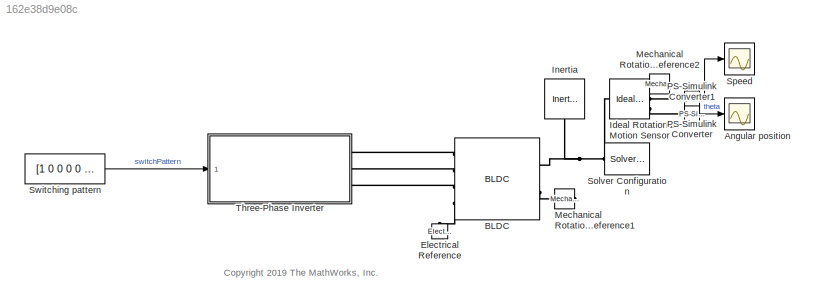
MODEL slx_162e38d9e08c
KIND model
CONFIG AbsTol = auto
CONFIG EnableMultiTasking = off
CONFIG FixedStep = 2e-6
CONFIG InitFcn = warning('off','physmod:simscape:engine:core:advancer_errors:fallback_solve')
CONFIG MaxStep = auto
CONFIG MinStep = auto
CONFIG RelTol = 1e-3
CONFIG SampleTimeConstraint = Unconstrained
CONFIG Solver = ode1
CONFIG SolverName = ode1
CONFIG StartTime = 0.0
CONFIG StopTime = 0.2
BLOCK [Scope] Angular position
  Floating = off
  NumInputPorts = 1
  Ports = [1]
  ScopeSpecificationString = Simulink.scopes.TimeScopeBlockCfg('CurrentConfiguration', extmgr.ConfigurationSet(extmgr.Configuration('Core','General UI',true),extmgr.Configuration('Core','Source UI',true),extmgr.Configuration('Sources','WiredSimulink',true,'DataLoggingVariableName','thetaSim','DataLoggingSaveFormat','StructureWithTime'),extmgr.Configuration('Visuals','Time Domain',true,'SerializedDisplays',{struct('MinYLimReal...<+1467ch>
BLOCK [Reference] BLDC  REF=ee_lib/Electromechanical/Permanent Magnet/BLDC
  Ports = [0, 0, 0, 0, 0, 4, 2]
  SourceBlock = ee_lib/Electromechanical/Permanent Magnet/BLDC
  SourceProductBaseCode = PS
  SourceProductName = Simscape Electrical
  SourceType = BLDC
BLOCK [Reference] Electrical Reference  REF=fl_lib/Electrical/Electrical Elements/Electrical Reference
  Ports = [0, 0, 0, 0, 0, 1]
  SourceBlock = fl_lib/Electrical/Electrical Elements/Electrical Reference
  SourceProductBaseCode = SS
  SourceProductName = Simscape
  SourceType = Electrical Reference
BLOCK [Reference] Ideal Rotational Motion Sensor  REF=fl_lib/Mechanical/Mechanical Sensors/Ideal Rotational
Motion Sensor
  Ports = [0, 0, 0, 0, 0, 1, 3]
  SourceBlock = fl_lib/Mechanical/Mechanical Sensors/Ideal Rotational\nMotion Sensor
  SourceProductBaseCode = SS
  SourceProductName = Simscape
  SourceType = Ideal Rotational\nMotion Sensor
BLOCK [Reference] Inertia  REF=fl_lib/Mechanical/Rotational Elements/Inertia
  Ports = [0, 0, 0, 0, 0, 1]
  SourceBlock = fl_lib/Mechanical/Rotational Elements/Inertia
  SourceProductBaseCode = SS
  SourceProductName = Simscape
  SourceType = Inertia
BLOCK [Reference] Mechanical Rotational Reference1  REF=fl_lib/Mechanical/Rotational Elements/Mechanical
Rotational Reference
  Ports = [0, 0, 0, 0, 0, 1]
  SourceBlock = fl_lib/Mechanical/Rotational Elements/Mechanical\nRotational Reference
  SourceProductBaseCode = SS
  SourceProductName = Simscape
  SourceType = Mechanical\nRotational Reference
BLOCK [Reference] Mechanical Rotational Reference2  REF=fl_lib/Mechanical/Rotational Elements/Mechanical
Rotational Reference
  Ports = [0, 0, 0, 0, 0, 1]
  SourceBlock = fl_lib/Mechanical/Rotational Elements/Mechanical\nRotational Reference
  SourceProductBaseCode = SS
  SourceProductName = Simscape
  SourceType = Mechanical\nRotational Reference
BLOCK [Reference] PS-Simulink Converter  REF=nesl_utility/PS-Simulink
Converter
  Ports = [0, 1, 0, 0, 0, 1]
  SourceBlock = nesl_utility/PS-Simulink\nConverter
  SourceProductBaseCode = SS
  SourceProductName = Simscape
  SourceType = PS-Simulink\nConverter
BLOCK [Reference] PS-Simulink Converter1  REF=nesl_utility/PS-Simulink
Converter
  Ports = [0, 1, 0, 0, 0, 1]
  SourceBlock = nesl_utility/PS-Simulink\nConverter
  SourceProductBaseCode = SS
  SourceProductName = Simscape
  SourceType = PS-Simulink\nConverter
BLOCK [Reference] Solver Configuration  REF=nesl_utility/Solver
Configuration
  Ports = [0, 0, 0, 0, 0, 0, 1]
  SourceBlock = nesl_utility/Solver\nConfiguration
  SourceProductBaseCode = SS
  SourceProductName = Simscape
  SourceType = Solver\nConfiguration
BLOCK [Scope] Speed
  Floating = off
  NumInputPorts = 1
  Ports = [1]
  ScopeSpecificationString = Simulink.scopes.TimeScopeBlockCfg('CurrentConfiguration', extmgr.ConfigurationSet(extmgr.Configuration('Core','General UI',true),extmgr.Configuration('Core','Source UI',true),extmgr.Configuration('Sources','WiredSimulink',true,'DataLoggingVariableName','theta','DataLoggingSaveFormat','StructureWithTime'),extmgr.Configuration('Visuals','Time Domain',true,'SerializedDisplays',{struct('MinYLimReal','...<+1454ch>
BLOCK [Constant] Switching pattern
  Value = [1 0 0 0 0 1]
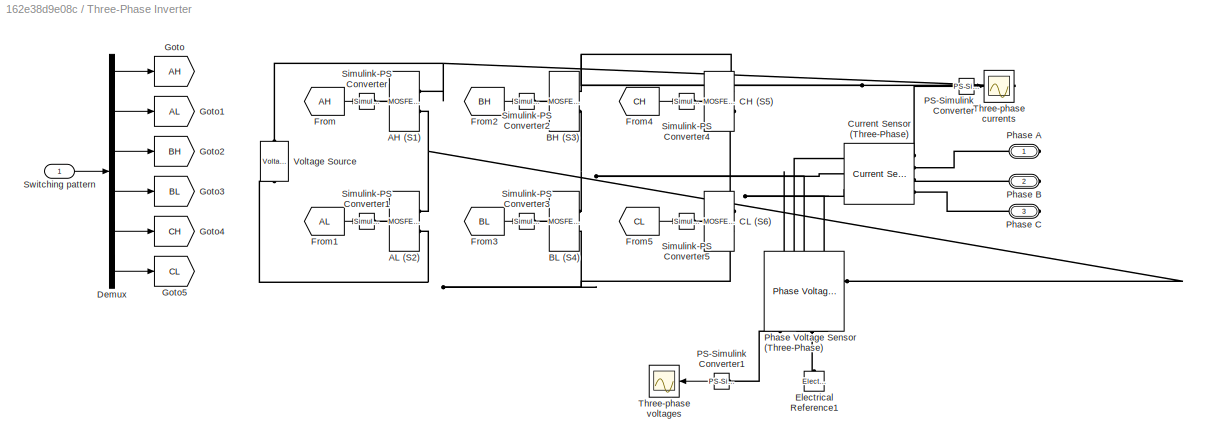
BLOCK [SubSystem] Three-Phase Inverter
  Ports = [1, 0, 0, 0, 0, 0, 3]
  RequestExecContextInheritance = off
BLOCK [Reference] Three-Phase Inverter/AH (S1)  REF=ee_lib/Semiconductors &
Converters/MOSFET
(Ideal,
Switching)
  Ports = [0, 0, 0, 0, 0, 1, 2]
  SourceBlock = ee_lib/Semiconductors &\nConverters/MOSFET\n(Ideal,\nSwitching)
  SourceProductBaseCode = PS
  SourceProductName = Simscape Electrical
  SourceType = MOSFET\n(Ideal,\nSwitching)
BLOCK [Reference] Three-Phase Inverter/AL (S2)  REF=ee_lib/Semiconductors &
Converters/MOSFET
(Ideal,
Switching)
  Ports = [0, 0, 0, 0, 0, 1, 2]
  SourceBlock = ee_lib/Semiconductors &\nConverters/MOSFET\n(Ideal,\nSwitching)
  SourceProductBaseCode = PS
  SourceProductName = Simscape Electrical
  SourceType = MOSFET\n(Ideal,\nSwitching)
BLOCK [Reference] Three-Phase Inverter/BH (S3)  REF=ee_lib/Semiconductors &
Converters/MOSFET
(Ideal,
Switching)
  Ports = [0, 0, 0, 0, 0, 1, 2]
  SourceBlock = ee_lib/Semiconductors &\nConverters/MOSFET\n(Ideal,\nSwitching)
  SourceProductBaseCode = PS
  SourceProductName = Simscape Electrical
  SourceType = MOSFET\n(Ideal,\nSwitching)
BLOCK [Reference] Three-Phase Inverter/BL (S4)  REF=ee_lib/Semiconductors &
Converters/MOSFET
(Ideal,
Switching)
  Ports = [0, 0, 0, 0, 0, 1, 2]
  SourceBlock = ee_lib/Semiconductors &\nConverters/MOSFET\n(Ideal,\nSwitching)
  SourceProductBaseCode = PS
  SourceProductName = Simscape Electrical
  SourceType = MOSFET\n(Ideal,\nSwitching)
BLOCK [Reference] Three-Phase Inverter/CH (S5)  REF=ee_lib/Semiconductors &
Converters/MOSFET
(Ideal,
Switching)
  Ports = [0, 0, 0, 0, 0, 1, 2]
  SourceBlock = ee_lib/Semiconductors &\nConverters/MOSFET\n(Ideal,\nSwitching)
  SourceProductBaseCode = PS
  SourceProductName = Simscape Electrical
  SourceType = MOSFET\n(Ideal,\nSwitching)
BLOCK [Reference] Three-Phase Inverter/CL (S6)  REF=ee_lib/Semiconductors &
Converters/MOSFET
(Ideal,
Switching)
  Ports = [0, 0, 0, 0, 0, 1, 2]
  SourceBlock = ee_lib/Semiconductors &\nConverters/MOSFET\n(Ideal,\nSwitching)
  SourceProductBaseCode = PS
  SourceProductName = Simscape Electrical
  SourceType = MOSFET\n(Ideal,\nSwitching)
BLOCK [Reference] Three-Phase Inverter/Current Sensor (Three-Phase)  REF=ee_lib/Sensors &
Transducers/Current Sensor
(Three-Phase)
  Ports = [0, 0, 0, 0, 0, 3, 4]
  SourceBlock = ee_lib/Sensors &\nTransducers/Current Sensor\n(Three-Phase)
  SourceProductBaseCode = PS
  SourceProductName = Simscape Electrical
  SourceType = Current Sensor\n(Three-Phase)
BLOCK [Demux] Three-Phase Inverter/Demux
  DisplayOption = bar
  Outputs = 6
  Ports = [1, 6]
BLOCK [Reference] Three-Phase Inverter/Electrical Reference1  REF=fl_lib/Electrical/Electrical Elements/Electrical Reference
  Ports = [0, 0, 0, 0, 0, 1]
  SourceBlock = fl_lib/Electrical/Electrical Elements/Electrical Reference
  SourceProductBaseCode = SS
  SourceProductName = Simscape
  SourceType = Electrical Reference
BLOCK [From] Three-Phase Inverter/From
  GotoTag = AH
BLOCK [From] Three-Phase Inverter/From1
  GotoTag = AL
BLOCK [From] Three-Phase Inverter/From2
  GotoTag = BH
BLOCK [From] Three-Phase Inverter/From3
  GotoTag = BL
BLOCK [From] Three-Phase Inverter/From4
  GotoTag = CH
BLOCK [From] Three-Phase Inverter/From5
  GotoTag = CL
BLOCK [Goto] Three-Phase Inverter/Goto
  GotoTag = AH
BLOCK [Goto] Three-Phase Inverter/Goto1
  GotoTag = AL
BLOCK [Goto] Three-Phase Inverter/Goto2
  GotoTag = BH
BLOCK [Goto] Three-Phase Inverter/Goto3
  GotoTag = BL
BLOCK [Goto] Three-Phase Inverter/Goto4
  GotoTag = CH
BLOCK [Goto] Three-Phase Inverter/Goto5
  GotoTag = CL
BLOCK [Reference] Three-Phase Inverter/PS-Simulink Converter  REF=nesl_utility/PS-Simulink
Converter
  Ports = [0, 1, 0, 0, 0, 1]
  SourceBlock = nesl_utility/PS-Simulink\nConverter
  SourceProductBaseCode = SS
  SourceProductName = Simscape
  SourceType = PS-Simulink\nConverter
BLOCK [Reference] Three-Phase Inverter/PS-Simulink Converter1  REF=nesl_utility/PS-Simulink
Converter
  Ports = [0, 1, 0, 0, 0, 1]
  SourceBlock = nesl_utility/PS-Simulink\nConverter
  SourceProductBaseCode = SS
  SourceProductName = Simscape
  SourceType = PS-Simulink\nConverter
BLOCK [PMIOPort] Three-Phase Inverter/Phase A
  Side = Right
BLOCK [PMIOPort] Three-Phase Inverter/Phase B
  Port = 2
  Side = Right
BLOCK [PMIOPort] Three-Phase Inverter/Phase C
  Port = 3
  Side = Right
BLOCK [Reference] Three-Phase Inverter/Phase Voltage Sensor (Three-Phase)  REF=ee_lib/Sensors &
Transducers/Phase Voltage Sensor
(Three-Phase)
  Ports = [0, 0, 0, 0, 0, 3, 4]
  SourceBlock = ee_lib/Sensors &\nTransducers/Phase Voltage Sensor\n(Three-Phase)
  SourceProductBaseCode = PS
  SourceProductName = Simscape Electrical
  SourceType = Phase Voltage Sensor\n(Three-Phase)
BLOCK [Reference] Three-Phase Inverter/Simulink-PS Converter  REF=nesl_utility/Simulink-PS
Converter
  Ports = [1, 0, 0, 0, 0, 0, 1]
  SourceBlock = nesl_utility/Simulink-PS\nConverter
  SourceProductBaseCode = SS
  SourceProductName = Simscape
  SourceType = Simulink-PS\nConverter
BLOCK [Reference] Three-Phase Inverter/Simulink-PS Converter1  REF=nesl_utility/Simulink-PS
Converter
  Ports = [1, 0, 0, 0, 0, 0, 1]
  SourceBlock = nesl_utility/Simulink-PS\nConverter
  SourceProductBaseCode = SS
  SourceProductName = Simscape
  SourceType = Simulink-PS\nConverter
BLOCK [Reference] Three-Phase Inverter/Simulink-PS Converter2  REF=nesl_utility/Simulink-PS
Converter
  Ports = [1, 0, 0, 0, 0, 0, 1]
  SourceBlock = nesl_utility/Simulink-PS\nConverter
  SourceProductBaseCode = SS
  SourceProductName = Simscape
  SourceType = Simulink-PS\nConverter
BLOCK [Reference] Three-Phase Inverter/Simulink-PS Converter3  REF=nesl_utility/Simulink-PS
Converter
  Ports = [1, 0, 0, 0, 0, 0, 1]
  SourceBlock = nesl_utility/Simulink-PS\nConverter
  SourceProductBaseCode = SS
  SourceProductName = Simscape
  SourceType = Simulink-PS\nConverter
BLOCK [Reference] Three-Phase Inverter/Simulink-PS Converter4  REF=nesl_utility/Simulink-PS
Converter
  Ports = [1, 0, 0, 0, 0, 0, 1]
  SourceBlock = nesl_utility/Simulink-PS\nConverter
  SourceProductBaseCode = SS
  SourceProductName = Simscape
  SourceType = Simulink-PS\nConverter
BLOCK [Reference] Three-Phase Inverter/Simulink-PS Converter5  REF=nesl_utility/Simulink-PS
Converter
  Ports = [1, 0, 0, 0, 0, 0, 1]
  SourceBlock = nesl_utility/Simulink-PS\nConverter
  SourceProductBaseCode = SS
  SourceProductName = Simscape
  SourceType = Simulink-PS\nConverter
BLOCK [Inport] Three-Phase Inverter/Switching pattern
  IconDisplay = Port number
BLOCK [Scope] Three-Phase Inverter/Three-phase currents
  Floating = off
  NumInputPorts = 1
  Ports = [1]
  ScopeSpecificationString = Simulink.scopes.TimeScopeBlockCfg('CurrentConfiguration', extmgr.ConfigurationSet(extmgr.Configuration('Core','General UI',true),extmgr.Configuration('Core','Source UI',true),extmgr.Configuration('Sources','WiredSimulink',true),extmgr.Configuration('Visuals','Time Domain',true,'SerializedDisplays',{struct('MinYLimReal','-1248.2374','MaxYLimReal','1248.23739','YLabelReal','','MinYLimMag','  0.00000...<+1413ch>
BLOCK [Scope] Three-Phase Inverter/Three-phase voltages
  Floating = off
  NumInputPorts = 1
  Ports = [1]
  ScopeSpecificationString = Simulink.scopes.TimeScopeBlockCfg('CurrentConfiguration', extmgr.ConfigurationSet(extmgr.Configuration('Core','General UI',true),extmgr.Configuration('Core','Source UI',true),extmgr.Configuration('Sources','WiredSimulink',true,'DataLoggingVariableName','ScopeData1'),extmgr.Configuration('Visuals','Time Domain',true,'SerializedDisplays',{struct('MinYLimReal','-76.713','MaxYLimReal','76.57791','YLab...<+1435ch>
BLOCK [Reference] Three-Phase Inverter/Voltage Source  REF=ee_lib/Sources/Voltage Source
  Ports = [0, 0, 0, 0, 0, 1, 1]
  SourceBlock = ee_lib/Sources/Voltage Source
  SourceProductBaseCode = PS
  SourceProductName = Simscape Electrical
  SourceType = Voltage Source
ANNOTATION (root): <copyright redacted>
LINE PS-Simulink Converter1:1 -> Angular position:1
LINE PS-Simulink Converter:1 -> Speed:1
LINE Switching pattern:1 -> Three-Phase Inverter:1
LINE Three-Phase Inverter/Demux:1 -> Three-Phase Inverter/Goto:1
LINE Three-Phase Inverter/Demux:2 -> Three-Phase Inverter/Goto1:1
LINE Three-Phase Inverter/Demux:3 -> Three-Phase Inverter/Goto2:1
LINE Three-Phase Inverter/Demux:4 -> Three-Phase Inverter/Goto3:1
LINE Three-Phase Inverter/Demux:5 -> Three-Phase Inverter/Goto4:1
LINE Three-Phase Inverter/Demux:6 -> Three-Phase Inverter/Goto5:1
LINE Three-Phase Inverter/From1:1 -> Three-Phase Inverter/Simulink-PS Converter1:1
LINE Three-Phase Inverter/From2:1 -> Three-Phase Inverter/Simulink-PS Converter2:1
LINE Three-Phase Inverter/From3:1 -> Three-Phase Inverter/Simulink-PS Converter3:1
LINE Three-Phase Inverter/From4:1 -> Three-Phase Inverter/Simulink-PS Converter4:1
LINE Three-Phase Inverter/From5:1 -> Three-Phase Inverter/Simulink-PS Converter5:1
LINE Three-Phase Inverter/From:1 -> Three-Phase Inverter/Simulink-PS Converter:1
LINE Three-Phase Inverter/PS-Simulink Converter1:1 -> Three-Phase Inverter/Three-phase voltages:1
LINE Three-Phase Inverter/PS-Simulink Converter:1 -> Three-Phase Inverter/Three-phase currents:1
LINE Three-Phase Inverter/Switching pattern:1 -> Three-Phase Inverter/Demux:1
PLINE BLDC:LConn1 -- Three-Phase Inverter:RConn1
PLINE BLDC:LConn2 -- Three-Phase Inverter:RConn2
PLINE BLDC:LConn3 -- Three-Phase Inverter:RConn3
PLINE BLDC:LConn4 -- Electrical Reference:LConn1
PNET net1: BLDC:RConn1 -- Ideal Rotational Motion Sensor:LConn1 -- Inertia:LConn1 -- Solver Configuration:RConn1
PLINE BLDC:RConn2 -- Mechanical Rotational Reference1:LConn1
PLINE Ideal Rotational Motion Sensor:RConn1 -- Mechanical Rotational Reference2:LConn1
PLINE Ideal Rotational Motion Sensor:RConn2 -- PS-Simulink Converter:LConn1
PLINE Ideal Rotational Motion Sensor:RConn3 -- PS-Simulink Converter1:LConn1
PLINE Three-Phase Inverter/AH (S1):LConn1 -- Three-Phase Inverter/Simulink-PS Converter:RConn1
PNET net2: Three-Phase Inverter/AH (S1):RConn1 -- Three-Phase Inverter/BH (S3):RConn1 -- Three-Phase Inverter/CH (S5):RConn1 -- Three-Phase Inverter/Voltage Source:LConn1
PNET net3: Three-Phase Inverter/AH (S1):RConn2 -- Three-Phase Inverter/AL (S2):RConn1 -- Three-Phase Inverter/Current Sensor (Three-Phase):LConn1 -- Three-Phase Inverter/Phase Voltage Sensor (Three-Phase):LConn1
PLINE Three-Phase Inverter/AL (S2):LConn1 -- Three-Phase Inverter/Simulink-PS Converter1:RConn1
PNET net4: Three-Phase Inverter/AL (S2):RConn2 -- Three-Phase Inverter/BL (S4):RConn2 -- Three-Phase Inverter/CL (S6):RConn2 -- Three-Phase Inverter/Voltage Source:RConn1
PLINE Three-Phase Inverter/BH (S3):LConn1 -- Three-Phase Inverter/Simulink-PS Converter2:RConn1
PNET net5: Three-Phase Inverter/BH (S3):RConn2 -- Three-Phase Inverter/BL (S4):RConn1 -- Three-Phase Inverter/Current Sensor (Three-Phase):LConn2 -- Three-Phase Inverter/Phase Voltage Sensor (Three-Phase):LConn2
PLINE Three-Phase Inverter/BL (S4):LConn1 -- Three-Phase Inverter/Simulink-PS Converter3:RConn1
PLINE Three-Phase Inverter/CH (S5):LConn1 -- Three-Phase Inverter/Simulink-PS Converter4:RConn1
PNET net6: Three-Phase Inverter/CH (S5):RConn2 -- Three-Phase Inverter/CL (S6):RConn1 -- Three-Phase Inverter/Current Sensor (Three-Phase):LConn3 -- Three-Phase Inverter/Phase Voltage Sensor (Three-Phase):LConn3
PLINE Three-Phase Inverter/CL (S6):LConn1 -- Three-Phase Inverter/Simulink-PS Converter5:RConn1
PLINE Three-Phase Inverter/Current Sensor (Three-Phase):RConn1 -- Three-Phase Inverter/PS-Simulink Converter:LConn1
PLINE Three-Phase Inverter/Current Sensor (Three-Phase):RConn2 -- Three-Phase Inverter/Phase A:RConn1
PLINE Three-Phase Inverter/Current Sensor (Three-Phase):RConn3 -- Three-Phase Inverter/Phase B:RConn1
PLINE Three-Phase Inverter/Current Sensor (Three-Phase):RConn4 -- Three-Phase Inverter/Phase C:RConn1
PNET net7: Three-Phase Inverter/Electrical Reference1:LConn1 -- Three-Phase Inverter/Phase Voltage Sensor (Three-Phase):RConn2 -- Three-Phase Inverter/Phase Voltage Sensor (Three-Phase):RConn3 -- Three-Phase Inverter/Phase Voltage Sensor (Three-Phase):RConn4
PLINE Three-Phase Inverter/PS-Simulink Converter1:LConn1 -- Three-Phase Inverter/Phase Voltage Sensor (Three-Phase):RConn1
note: PNET lines group multi-terminal physical nets as a canonical sorted terminal list (undirected conserving connections); 2-terminal nets keep the pairwise PLINE form
